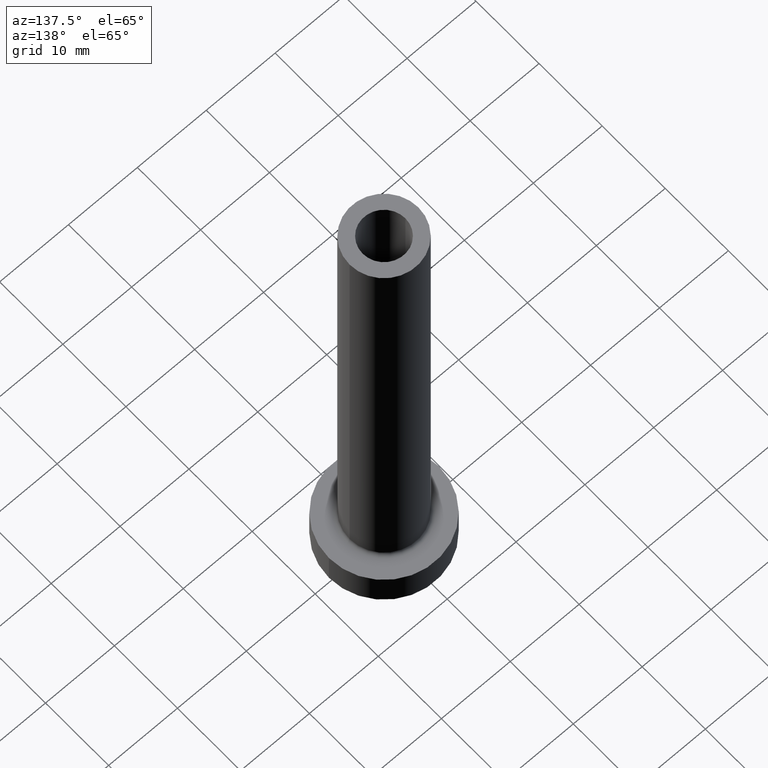
[diagram: clean part render]
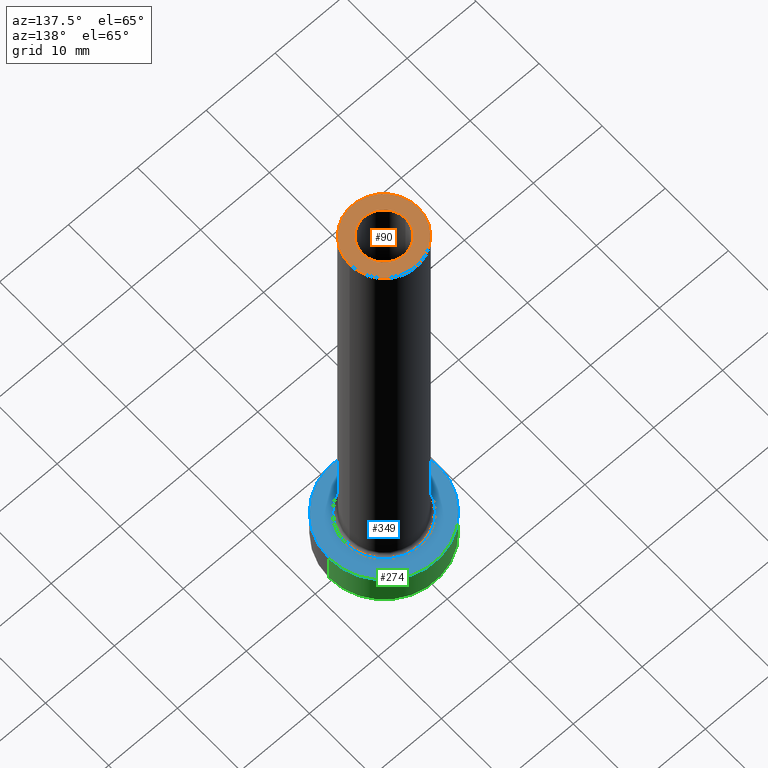
[diagram: same view with three faces highlighted in distinct colors, each labeled with its STEP entity id]
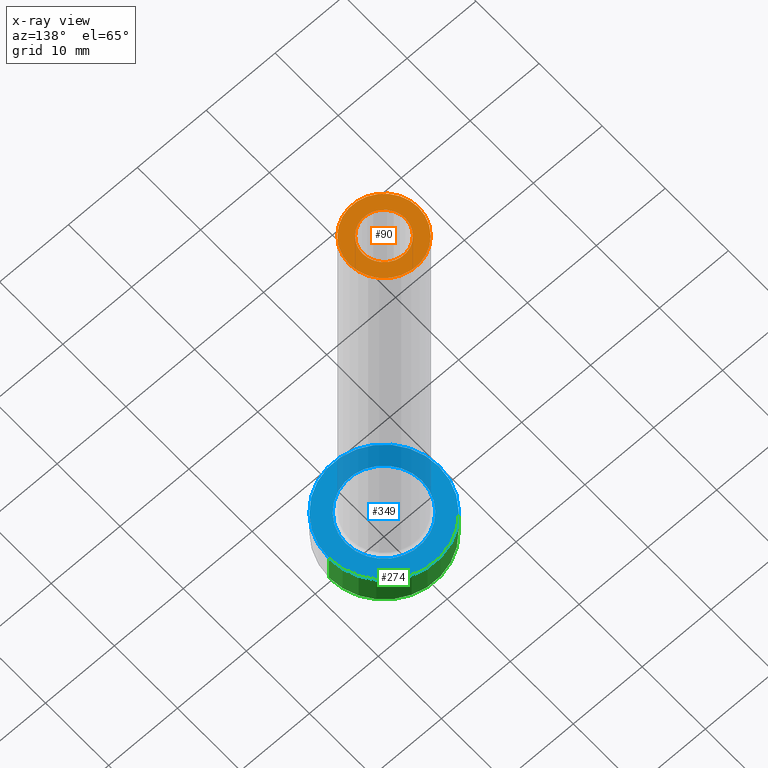
[diagram: x-ray of the same camera — body ghosted, the three highlighted faces saturated]
A machine part, auxiliary view with three faces highlighted in distinct colors.
The next image is the same camera in x-ray (body ghosted, the three faces saturated) — at least one of them is partly hidden behind the body in this view.
Their STEP definitions:

[orange] entity #90 — the highlighted planar face has unit normal (0, 0, 1).
#16 = EDGE_CURVE ( 'NONE', #136, #439, #296, .T. ) ;
#22 = PLANE ( 'NONE',  #99 ) ;
#71 = CARTESIAN_POINT ( 'NONE',  ( -5.000000000000000000, 0.000000000000000000, 75.00000000000001421 ) ) ;
#79 = VERTEX_POINT ( 'NONE', #185 ) ;
#90 = ADVANCED_FACE ( 'NONE', ( #159, #124 ), #22, .T. ) ;
#93 = DIRECTION ( 'NONE',  ( 0.000000000000000000, 0.000000000000000000, 1.000000000000000000 ) ) ;
#94 = CARTESIAN_POINT ( 'NONE',  ( 0.000000000000000000, 0.000000000000000000, 75.00000000000001421 ) ) ;
#99 = AXIS2_PLACEMENT_3D ( 'NONE', #265, #93, #198 ) ;
#119 = AXIS2_PLACEMENT_3D ( 'NONE', #231, #145, #276 ) ;
#122 = EDGE_CURVE ( 'NONE', #330, #79, #299, .T. ) ;
#124 = FACE_OUTER_BOUND ( 'NONE', #188, .T. ) ;
#126 = DIRECTION ( 'NONE',  ( 0.000000000000000000, 0.000000000000000000, 1.000000000000000000 ) ) ;
#136 = VERTEX_POINT ( 'NONE', #71 ) ;
#145 = DIRECTION ( 'NONE',  ( 0.000000000000000000, 0.000000000000000000, 1.000000000000000000 ) ) ;
#158 = CARTESIAN_POINT ( 'NONE',  ( 0.000000000000000000, 0.000000000000000000, 75.00000000000001421 ) ) ;
#159 = FACE_BOUND ( 'NONE', #375, .T. ) ;
#185 = CARTESIAN_POINT ( 'NONE',  ( 3.100000000000000089, 3.796405077356793932E-16, 75.00000000000001421 ) ) ;
#188 = EDGE_LOOP ( 'NONE', ( #343, #218 ) ) ;
#197 = DIRECTION ( 'NONE',  ( 1.000000000000000000, 0.000000000000000000, 0.000000000000000000 ) ) ;
#198 = DIRECTION ( 'NONE',  ( 1.000000000000000000, 0.000000000000000000, -0.000000000000000000 ) ) ;
#203 = AXIS2_PLACEMENT_3D ( 'NONE', #211, #126, #316 ) ;
#208 = CARTESIAN_POINT ( 'NONE',  ( -3.100000000000000089, 0.000000000000000000, 75.00000000000001421 ) ) ;
#211 = CARTESIAN_POINT ( 'NONE',  ( 0.000000000000000000, 0.000000000000000000, 75.00000000000001421 ) ) ;
#218 = ORIENTED_EDGE ( 'NONE', *, *, #283, .T. ) ;
#228 = CIRCLE ( 'NONE', #232, 3.100000000000000089 ) ;
#231 = CARTESIAN_POINT ( 'NONE',  ( 0.000000000000000000, 0.000000000000000000, 75.00000000000001421 ) ) ;
#232 = AXIS2_PLACEMENT_3D ( 'NONE', #94, #442, #197 ) ;
#246 = DIRECTION ( 'NONE',  ( 1.000000000000000000, 0.000000000000000000, 0.000000000000000000 ) ) ;
#265 = CARTESIAN_POINT ( 'NONE',  ( 0.000000000000000000, 0.000000000000000000, 75.00000000000001421 ) ) ;
#276 = DIRECTION ( 'NONE',  ( 1.000000000000000000, 0.000000000000000000, 0.000000000000000000 ) ) ;
#283 = EDGE_CURVE ( 'NONE', #439, #136, #333, .T. ) ;
#296 = CIRCLE ( 'NONE', #203, 5.000000000000000000 ) ;
#299 = CIRCLE ( 'NONE', #119, 3.100000000000000089 ) ;
#316 = DIRECTION ( 'NONE',  ( 1.000000000000000000, 0.000000000000000000, 0.000000000000000000 ) ) ;
#323 = ORIENTED_EDGE ( 'NONE', *, *, #458, .F. ) ;
#330 = VERTEX_POINT ( 'NONE', #208 ) ;
#333 = CIRCLE ( 'NONE', #360, 5.000000000000000000 ) ;
#343 = ORIENTED_EDGE ( 'NONE', *, *, #16, .T. ) ;
#360 = AXIS2_PLACEMENT_3D ( 'NONE', #158, #394, #246 ) ;
#362 = ORIENTED_EDGE ( 'NONE', *, *, #122, .F. ) ;
#375 = EDGE_LOOP ( 'NONE', ( #362, #323 ) ) ;
#394 = DIRECTION ( 'NONE',  ( 0.000000000000000000, 0.000000000000000000, 1.000000000000000000 ) ) ;
#403 = CARTESIAN_POINT ( 'NONE',  ( 5.000000000000000000, 6.123233995736766282E-16, 75.00000000000001421 ) ) ;
#439 = VERTEX_POINT ( 'NONE', #403 ) ;
#442 = DIRECTION ( 'NONE',  ( 0.000000000000000000, 0.000000000000000000, 1.000000000000000000 ) ) ;
#458 = EDGE_CURVE ( 'NONE', #79, #330, #228, .T. ) ;

[blue] entity #349 — the highlighted planar face has unit normal (0, 0, 1).
#4 = CIRCLE ( 'NONE', #108, 5.500000000000000000 ) ;
#6 = EDGE_LOOP ( 'NONE', ( #386, #33 ) ) ;
#7 = DIRECTION ( 'NONE',  ( 1.000000000000000000, 0.000000000000000000, 0.000000000000000000 ) ) ;
#21 = DIRECTION ( 'NONE',  ( 1.000000000000000000, 0.000000000000000000, 0.000000000000000000 ) ) ;
#26 = CIRCLE ( 'NONE', #267, 5.500000000000000000 ) ;
#28 = EDGE_CURVE ( 'NONE', #252, #291, #4, .T. ) ;
#33 = ORIENTED_EDGE ( 'NONE', *, *, #28, .T. ) ;
#36 = EDGE_CURVE ( 'NONE', #161, #309, #385, .T. ) ;
#41 = CARTESIAN_POINT ( 'NONE',  ( 0.000000000000000000, 0.000000000000000000, 5.000000000000000000 ) ) ;
#49 = DIRECTION ( 'NONE',  ( 0.000000000000000000, 0.000000000000000000, 1.000000000000000000 ) ) ;
#58 = FACE_BOUND ( 'NONE', #6, .T. ) ;
#69 = CARTESIAN_POINT ( 'NONE',  ( 8.000000000000000000, 9.797174393178825657E-16, 5.000000000000000000 ) ) ;
#83 = ORIENTED_EDGE ( 'NONE', *, *, #36, .T. ) ;
#108 = AXIS2_PLACEMENT_3D ( 'NONE', #41, #423, #388 ) ;
#112 = CIRCLE ( 'NONE', #344, 8.000000000000000000 ) ;
#115 = DIRECTION ( 'NONE',  ( 0.000000000000000000, 0.000000000000000000, 1.000000000000000000 ) ) ;
#161 = VERTEX_POINT ( 'NONE', #69 ) ;
#168 = CARTESIAN_POINT ( 'NONE',  ( 0.000000000000000000, 0.000000000000000000, 5.000000000000000000 ) ) ;
#213 = CARTESIAN_POINT ( 'NONE',  ( 0.000000000000000000, 0.000000000000000000, 5.000000000000000000 ) ) ;
#217 = CARTESIAN_POINT ( 'NONE',  ( -8.000000000000000000, 0.000000000000000000, 5.000000000000000000 ) ) ;
#220 = AXIS2_PLACEMENT_3D ( 'NONE', #168, #335, #361 ) ;
#221 = CARTESIAN_POINT ( 'NONE',  ( 0.000000000000000000, 0.000000000000000000, 5.000000000000000000 ) ) ;
#227 = EDGE_CURVE ( 'NONE', #309, #161, #112, .T. ) ;
#229 = PLANE ( 'NONE',  #220 ) ;
#252 = VERTEX_POINT ( 'NONE', #350 ) ;
#253 = CARTESIAN_POINT ( 'NONE',  ( 0.000000000000000000, 0.000000000000000000, 5.000000000000000000 ) ) ;
#260 = DIRECTION ( 'NONE',  ( -0.000000000000000000, -0.000000000000000000, -1.000000000000000000 ) ) ;
#267 = AXIS2_PLACEMENT_3D ( 'NONE', #221, #260, #21 ) ;
#291 = VERTEX_POINT ( 'NONE', #428 ) ;
#309 = VERTEX_POINT ( 'NONE', #217 ) ;
#319 = AXIS2_PLACEMENT_3D ( 'NONE', #213, #115, #7 ) ;
#335 = DIRECTION ( 'NONE',  ( 0.000000000000000000, 0.000000000000000000, 1.000000000000000000 ) ) ;
#344 = AXIS2_PLACEMENT_3D ( 'NONE', #253, #49, #432 ) ;
#349 = ADVANCED_FACE ( 'NONE', ( #58, #368 ), #229, .T. ) ;
#350 = CARTESIAN_POINT ( 'NONE',  ( -5.500000000000000000, 6.735557395310442023E-16, 5.000000000000002665 ) ) ;
#355 = ORIENTED_EDGE ( 'NONE', *, *, #227, .T. ) ;
#361 = DIRECTION ( 'NONE',  ( 1.000000000000000000, 0.000000000000000000, -0.000000000000000000 ) ) ;
#368 = FACE_OUTER_BOUND ( 'NONE', #453, .T. ) ;
#369 = EDGE_CURVE ( 'NONE', #291, #252, #26, .T. ) ;
#385 = CIRCLE ( 'NONE', #319, 8.000000000000000000 ) ;
#386 = ORIENTED_EDGE ( 'NONE', *, *, #369, .T. ) ;
#388 = DIRECTION ( 'NONE',  ( 1.000000000000000000, 0.000000000000000000, 0.000000000000000000 ) ) ;
#423 = DIRECTION ( 'NONE',  ( -0.000000000000000000, -0.000000000000000000, -1.000000000000000000 ) ) ;
#428 = CARTESIAN_POINT ( 'NONE',  ( 5.500000000000000000, 0.000000000000000000, 5.000000000000002665 ) ) ;
#432 = DIRECTION ( 'NONE',  ( 1.000000000000000000, 0.000000000000000000, 0.000000000000000000 ) ) ;
#453 = EDGE_LOOP ( 'NONE', ( #355, #83 ) ) ;

[green] entity #274 — the highlighted cylindrical surface (partial cylindrical patch) has radius 8 mm, axis along (-0, -0, -1).
#3 = VERTEX_POINT ( 'NONE', #434 ) ;
#7 = DIRECTION ( 'NONE',  ( 1.000000000000000000, 0.000000000000000000, 0.000000000000000000 ) ) ;
#18 = VERTEX_POINT ( 'NONE', #426 ) ;
#36 = EDGE_CURVE ( 'NONE', #161, #309, #385, .T. ) ;
#55 = DIRECTION ( 'NONE',  ( -0.000000000000000000, -0.000000000000000000, -1.000000000000000000 ) ) ;
#66 = LINE ( 'NONE', #340, #372 ) ;
#69 = CARTESIAN_POINT ( 'NONE',  ( 8.000000000000000000, 9.797174393178825657E-16, 5.000000000000000000 ) ) ;
#81 = CARTESIAN_POINT ( 'NONE',  ( 0.000000000000000000, 0.000000000000000000, 5.000000000000000000 ) ) ;
#101 = CIRCLE ( 'NONE', #356, 8.000000000000000000 ) ;
#106 = EDGE_CURVE ( 'NONE', #309, #3, #367, .T. ) ;
#110 = DIRECTION ( 'NONE',  ( 0.000000000000000000, 0.000000000000000000, 1.000000000000000000 ) ) ;
#115 = DIRECTION ( 'NONE',  ( 0.000000000000000000, 0.000000000000000000, 1.000000000000000000 ) ) ;
#117 = DIRECTION ( 'NONE',  ( -0.000000000000000000, -0.000000000000000000, -1.000000000000000000 ) ) ;
#132 = EDGE_CURVE ( 'NONE', #18, #3, #101, .T. ) ;
#133 = CARTESIAN_POINT ( 'NONE',  ( -8.000000000000000000, 0.000000000000000000, 5.000000000000000000 ) ) ;
#138 = DIRECTION ( 'NONE',  ( 1.000000000000000000, 0.000000000000000000, 0.000000000000000000 ) ) ;
#140 = AXIS2_PLACEMENT_3D ( 'NONE', #81, #117, #280 ) ;
#143 = EDGE_LOOP ( 'NONE', ( #420, #429, #247, #381 ) ) ;
#156 = EDGE_CURVE ( 'NONE', #161, #18, #66, .T. ) ;
#161 = VERTEX_POINT ( 'NONE', #69 ) ;
#213 = CARTESIAN_POINT ( 'NONE',  ( 0.000000000000000000, 0.000000000000000000, 5.000000000000000000 ) ) ;
#217 = CARTESIAN_POINT ( 'NONE',  ( -8.000000000000000000, 0.000000000000000000, 5.000000000000000000 ) ) ;
#247 = ORIENTED_EDGE ( 'NONE', *, *, #132, .T. ) ;
#274 = ADVANCED_FACE ( 'NONE', ( #285 ), #418, .T. ) ;
#280 = DIRECTION ( 'NONE',  ( -1.000000000000000000, 0.000000000000000000, 0.000000000000000000 ) ) ;
#285 = FACE_OUTER_BOUND ( 'NONE', #143, .T. ) ;
#307 = VECTOR ( 'NONE', #55, 1000.000000000000000 ) ;
#309 = VERTEX_POINT ( 'NONE', #217 ) ;
#319 = AXIS2_PLACEMENT_3D ( 'NONE', #213, #115, #7 ) ;
#340 = CARTESIAN_POINT ( 'NONE',  ( 8.000000000000000000, 9.797174393178825657E-16, 5.000000000000000000 ) ) ;
#356 = AXIS2_PLACEMENT_3D ( 'NONE', #416, #110, #138 ) ;
#367 = LINE ( 'NONE', #133, #307 ) ;
#372 = VECTOR ( 'NONE', #374, 1000.000000000000000 ) ;
#374 = DIRECTION ( 'NONE',  ( -0.000000000000000000, -0.000000000000000000, -1.000000000000000000 ) ) ;
#381 = ORIENTED_EDGE ( 'NONE', *, *, #106, .F. ) ;
#385 = CIRCLE ( 'NONE', #319, 8.000000000000000000 ) ;
#416 = CARTESIAN_POINT ( 'NONE',  ( 0.000000000000000000, 0.000000000000000000, 0.000000000000000000 ) ) ;
#418 = CYLINDRICAL_SURFACE ( 'NONE', #140, 8.000000000000000000 ) ;
#420 = ORIENTED_EDGE ( 'NONE', *, *, #36, .F. ) ;
#426 = CARTESIAN_POINT ( 'NONE',  ( 8.000000000000000000, 9.797174393178825657E-16, 0.000000000000000000 ) ) ;
#429 = ORIENTED_EDGE ( 'NONE', *, *, #156, .T. ) ;
#434 = CARTESIAN_POINT ( 'NONE',  ( -8.000000000000000000, 0.000000000000000000, 0.000000000000000000 ) ) ;